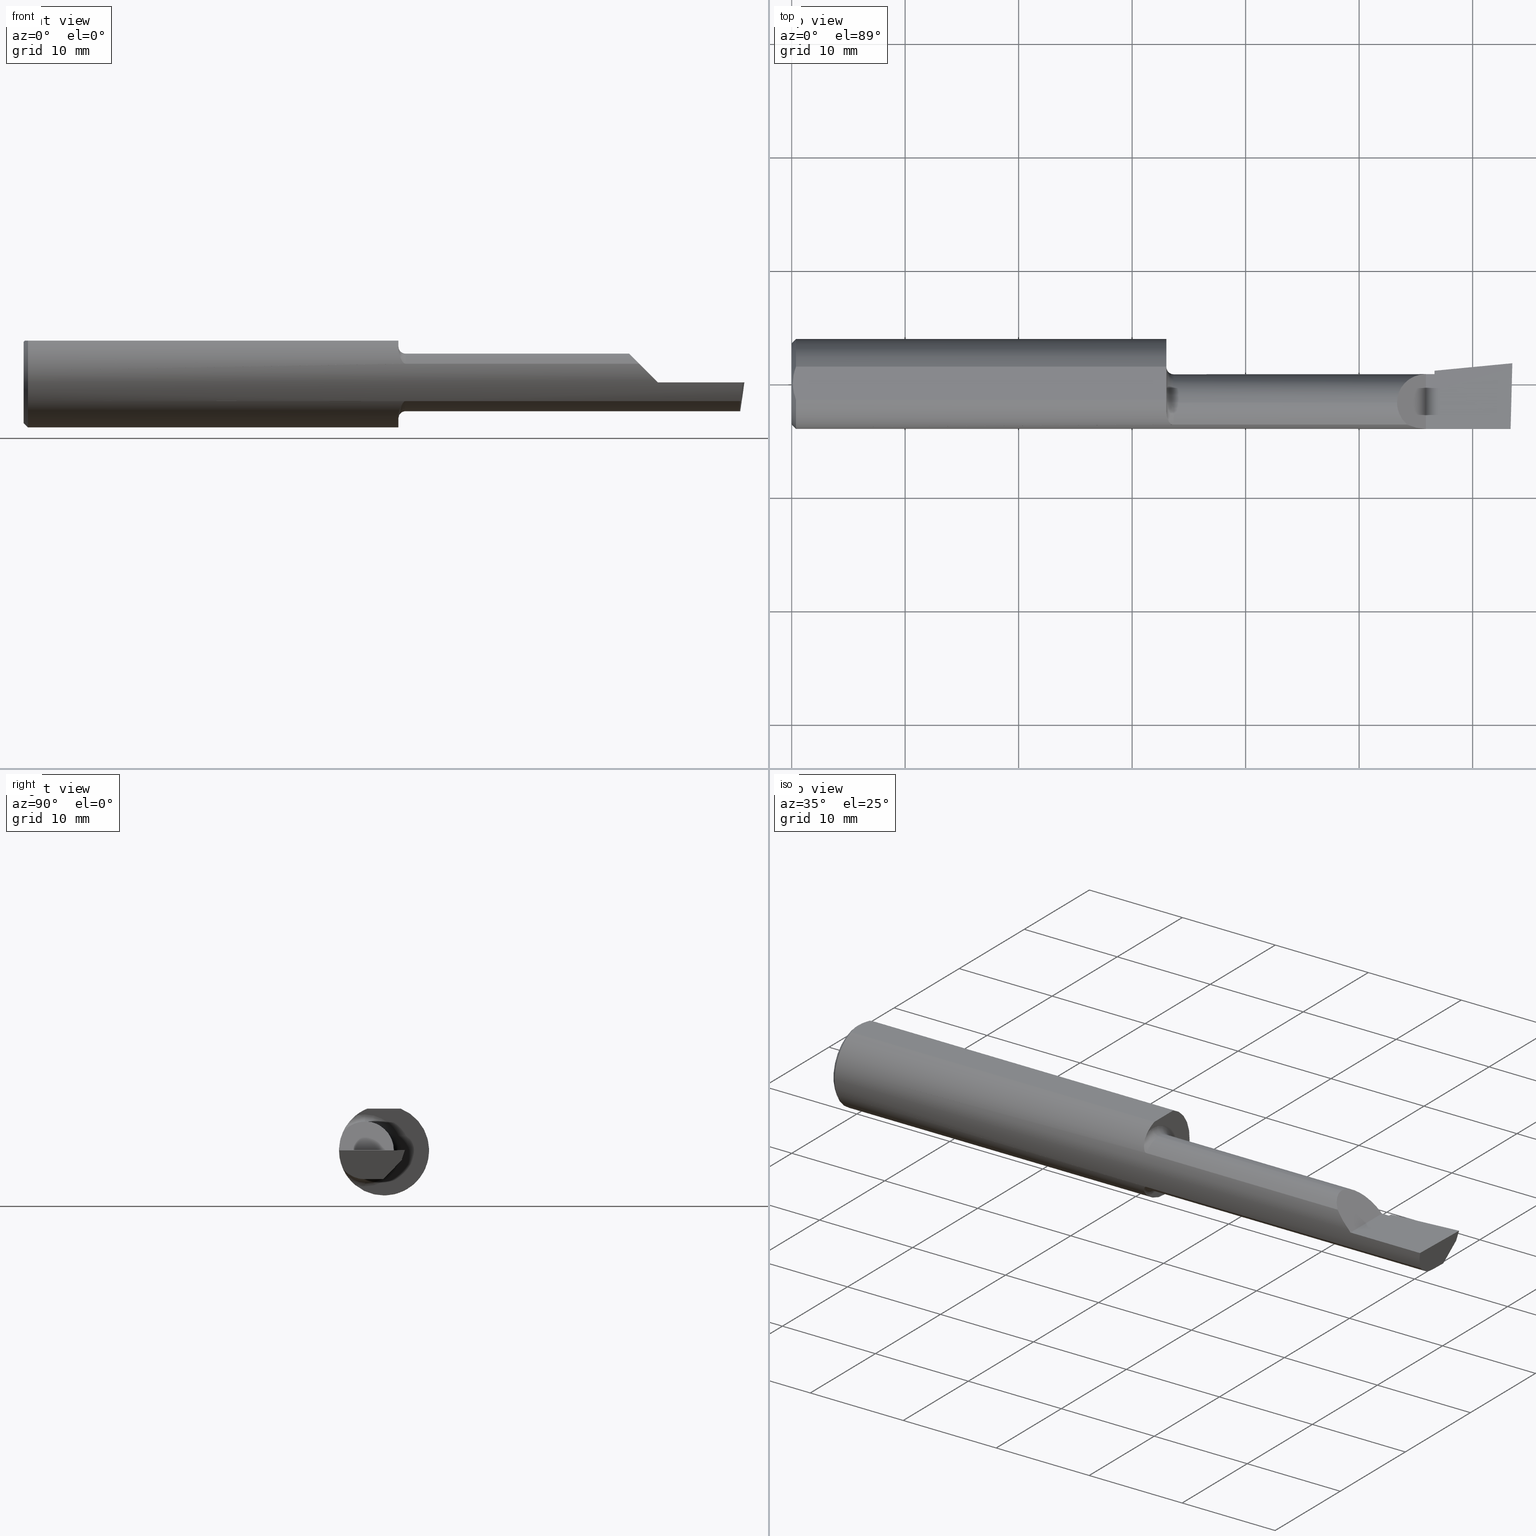
[diagram: canonical four-view strip — front | top / right | iso, engineering-drawing reading convention]
A machine part, canonical four-view strip (front | top / right | iso — engineering-drawing reading convention). The complete STEP part file that produces these views, byte-faithful:
ISO-10303-21;
HEADER;
FILE_DESCRIPTION (( 'STEP AP214' ),
    '1' );
FILE_NAME ('B2301150.STEP',
    '2020-05-07T17:21:41',
    ( '' ),
    ( '' ),
    'SwSTEP 2.0',
    'SolidWorks 2018',
    '' );
FILE_SCHEMA (( 'AUTOMOTIVE_DESIGN' ));
ENDSEC;

DATA;
#1 = AXIS2_PLACEMENT_3D ( 'NONE', #298, #615, #618 ) ;
#2 = EDGE_LOOP ( 'NONE', ( #656, #594, #20, #104 ) ) ;
#3 = EDGE_CURVE ( 'NONE', #108, #460, #457, .T. ) ;
#4 = ORIENTED_EDGE ( 'NONE', *, *, #416, .F. ) ;
#5 = CARTESIAN_POINT ( 'NONE',  ( 0.0000000000000000000, -0.06599999999999998923, 0.0000000000000000000 ) ) ;
#6 =( GEOMETRIC_REPRESENTATION_CONTEXT ( 3 ) GLOBAL_UNCERTAINTY_ASSIGNED_CONTEXT ( ( #172 ) ) GLOBAL_UNIT_ASSIGNED_CONTEXT ( ( #710, #40, #533 ) ) REPRESENTATION_CONTEXT ( 'NONE', 'WORKASPACE' ) );
#7 = VERTEX_POINT ( 'NONE', #640 ) ;
#8 = DIRECTION ( 'NONE',  ( 0.0000000000000000000, 1.000000000000000000, -1.656870447394628111E-16 ) ) ;
#9 = DIRECTION ( 'NONE',  ( 0.1240019227989686140, 0.3022330132596660612, 0.9451342385281262803 ) ) ;
#10 = ORIENTED_EDGE ( 'NONE', *, *, #69, .T. ) ;
#11 = DIRECTION ( 'NONE',  ( 1.000000000000000000, 0.0000000000000000000, 0.0000000000000000000 ) ) ;
#12 = ORIENTED_EDGE ( 'NONE', *, *, #209, .F. ) ;
#13 = AXIS2_PLACEMENT_3D ( 'NONE', #502, #111, #452 ) ;
#14 = VECTOR ( 'NONE', #471, 39.37007874015748854 ) ;
#15 = DIRECTION ( 'NONE',  ( 1.000000000000000000, 0.0000000000000000000, 0.0000000000000000000 ) ) ;
#16 = CARTESIAN_POINT ( 'NONE',  ( 2.200000000000000178, 0.03389999999999987468, 9.797174393178826150E-17 ) ) ;
#17 = DIRECTION ( 'NONE',  ( 1.000000000000000000, 0.0000000000000000000, 0.0000000000000000000 ) ) ;
#18 = EDGE_CURVE ( 'NONE', #389, #585, #80, .T. ) ;
#19 = ORIENTED_EDGE ( 'NONE', *, *, #499, .T. ) ;
#20 = ORIENTED_EDGE ( 'NONE', *, *, #403, .T. ) ;
#21 = CARTESIAN_POINT ( 'NONE',  ( 2.510979566536824414, 0.06220714699351684307, -0.03500000000000000333 ) ) ;
#22 = AXIS2_PLACEMENT_3D ( 'NONE', #548, #703, #706 ) ;
#23 = CARTESIAN_POINT ( 'NONE',  ( 1.300428134837081862, -0.1092850169809857497, -0.1116497630123361312 ) ) ;
#24 = DIRECTION ( 'NONE',  ( 1.000000000000000000, 0.0000000000000000000, 0.0000000000000000000 ) ) ;
#25 = CARTESIAN_POINT ( 'NONE',  ( 2.229999999999999982, 0.02031953758082122655, -0.05028864118101800118 ) ) ;
#26 = ORIENTED_EDGE ( 'NONE', *, *, #3, .F. ) ;
#27 = CARTESIAN_POINT ( 'NONE',  ( 1.325000000000000178, -0.06599999999999998923, -0.09989999999999990554 ) ) ;
#28 = EDGE_CURVE ( 'NONE', #164, #680, #353, .T. ) ;
#29 = DIRECTION ( 'NONE',  ( -1.000000000000000000, -0.0000000000000000000, -0.0000000000000000000 ) ) ;
#30 = CARTESIAN_POINT ( 'NONE',  ( 2.229999999999999982, -0.06599999999999998923, 0.0000000000000000000 ) ) ;
#31 = ADVANCED_FACE ( 'NONE', ( #167 ), #319, .F. ) ;
#32 = LINE ( 'NONE', #33, #200 ) ;
#33 = CARTESIAN_POINT ( 'NONE',  ( 2.495690841152410577, 0.06258158045839970485, -0.03309662379331571036 ) ) ;
#34 = CARTESIAN_POINT ( 'NONE',  ( 0.0000000000000000000, 0.05756040305626779902, 0.1450999999999999512 ) ) ;
#35 =( NAMED_UNIT ( * ) PLANE_ANGLE_UNIT ( ) SI_UNIT ( $, .RADIAN. ) );
#36 = CARTESIAN_POINT ( 'NONE',  ( 1.302040506864491576, -0.1180407066556270340, 0.1023492120876696720 ) ) ;
#37 = CARTESIAN_POINT ( 'NONE',  ( 1.325000000000000178, -0.06599999999999998923, 0.0000000000000000000 ) ) ;
#38 = VERTEX_POINT ( 'NONE', #584 ) ;
#39 = ORIENTED_EDGE ( 'NONE', *, *, #454, .F. ) ;
#40 =( NAMED_UNIT ( * ) PLANE_ANGLE_UNIT ( ) SI_UNIT ( $, .RADIAN. ) );
#41 = DIRECTION ( 'NONE',  ( 0.0000000000000000000, 0.0000000000000000000, 1.000000000000000000 ) ) ;
#42 = DIRECTION ( 'NONE',  ( 1.000000000000000000, 0.0000000000000000000, 0.0000000000000000000 ) ) ;
#43 = EDGE_CURVE ( 'NONE', #207, #108, #653, .T. ) ;
#44 = CARTESIAN_POINT ( 'NONE',  ( 2.100099999999998968, -0.06599999999999998923, 0.09989999999999991942 ) ) ;
#45 = UNCERTAINTY_MEASURE_WITH_UNIT (LENGTH_MEASURE( 1.000000000000000082E-05 ), #368, 'distance_accuracy_value', 'NONE');
#46 = EDGE_LOOP ( 'NONE', ( #83, #546, #244, #543 ) ) ;
#47 = AXIS2_PLACEMENT_3D ( 'NONE', #321, #106, #286 ) ;
#48 = VERTEX_POINT ( 'NONE', #398 ) ;
#49 = VECTOR ( 'NONE', #196, 39.37007874015748143 ) ;
#50 = B_SPLINE_CURVE_WITH_KNOTS ( 'NONE', 3,
 ( #637, #695, #371, #36, #430, #86, #485, #149, #537, #208, #586, #259, #643, #317 ),
 .UNSPECIFIED., .F., .F.,
 ( 4, 2, 2, 2, 2, 2, 4 ),
 ( 0.0001856976868807112932, 0.0006805519038525565442, 0.001175406120824401849, 0.001670260337796246938, 0.001917687446282169807, 0.002041401000525131567, 0.002165114554768093110 ),
 .UNSPECIFIED. ) ;
#51 = CIRCLE ( 'NONE', #411, 0.09989999999999990554 ) ;
#52 = AXIS2_PLACEMENT_3D ( 'NONE', #327, #651, #268 ) ;
#53 = EDGE_CURVE ( 'NONE', #460, #689, #404, .T. ) ;
#54 = VERTEX_POINT ( 'NONE', #344 ) ;
#55 = ORIENTED_EDGE ( 'NONE', *, *, #664, .F. ) ;
#56 = FACE_OUTER_BOUND ( 'NONE', #578, .T. ) ;
#57 = AXIS2_PLACEMENT_3D ( 'NONE', #257, #475, #482 ) ;
#58 = CARTESIAN_POINT ( 'NONE',  ( 2.229999999999999982, 0.04590195698666835883, 3.180041805124806541E-16 ) ) ;
#59 = ORIENTED_EDGE ( 'NONE', *, *, #305, .F. ) ;
#60 = STYLED_ITEM ( 'NONE', ( #544 ), #622 ) ;
#61 = EDGE_CURVE ( 'NONE', #351, #389, #163, .T. ) ;
#62 = ORIENTED_EDGE ( 'NONE', *, *, #318, .T. ) ;
#63 = CARTESIAN_POINT ( 'NONE',  ( 2.500188977433819293, 0.07236059946466855131, 0.001440373173036951305 ) ) ;
#64 = CIRCLE ( 'NONE', #590, 0.09989999999999991942 ) ;
#65 = EDGE_LOOP ( 'NONE', ( #180, #141, #153, #506, #465, #262 ) ) ;
#66 = LINE ( 'NONE', #681, #334 ) ;
#67 = DIRECTION ( 'NONE',  ( 1.000000000000000000, 0.0000000000000000000, 0.0000000000000000000 ) ) ;
#68 = DIRECTION ( 'NONE',  ( -1.000000000000000000, -0.0000000000000000000, -0.0000000000000000000 ) ) ;
#69 = EDGE_CURVE ( 'NONE', #670, #680, #316, .T. ) ;
#70 = VERTEX_POINT ( 'NONE', #58 ) ;
#71 = CARTESIAN_POINT ( 'NONE',  ( 1.300000000000000266, -0.09941818181818193323, -0.1203463132961160309 ) ) ;
#72 = ORIENTED_EDGE ( 'NONE', *, *, #628, .T. ) ;
#73 = CARTESIAN_POINT ( 'NONE',  ( 2.495407988494083629, 0.06070777456484782730, -0.03500000000000000333 ) ) ;
#74 = CARTESIAN_POINT ( 'NONE',  ( 0.0000000000000000000, 0.0000000000000000000, 0.0000000000000000000 ) ) ;
#75 = COLOUR_RGB ( '',0.7529411764705882248, 0.7529411764705882248, 0.7529411764705882248 ) ;
#76 = CARTESIAN_POINT ( 'NONE',  ( 2.155587570325277369, -0.1513252362624134539, 0.04441242967472197600 ) ) ;
#77 = ADVANCED_FACE ( 'NONE', ( #420 ), #118, .T. ) ;
#78 = CARTESIAN_POINT ( 'NONE',  ( 2.112547924827750112, -0.1227037540429563173, 0.08745207517224930227 ) ) ;
#79 = PLANE ( 'NONE',  #222 ) ;
#80 = CIRCLE ( 'NONE', #508, 0.09989999999999990554 ) ;
#81 = CARTESIAN_POINT ( 'NONE',  ( 2.135154559332283597, -0.1419939393939393668, 0.06484544066771584514 ) ) ;
#82 = ADVANCED_FACE ( 'NONE', ( #559 ), #604, .F. ) ;
#83 = ORIENTED_EDGE ( 'NONE', *, *, #678, .F. ) ;
#84 = VERTEX_POINT ( 'NONE', #661 ) ;
#85 = FACE_OUTER_BOUND ( 'NONE', #65, .T. ) ;
#86 = CARTESIAN_POINT ( 'NONE',  ( 1.306590655429605397, -0.1296720675120676958, 0.08713405786343433879 ) ) ;
#87 = EDGE_CURVE ( 'NONE', #407, #487, #509, .T. ) ;
#88 = FILL_AREA_STYLE_COLOUR ( '', #297 ) ;
#89 = DIRECTION ( 'NONE',  ( 0.0000000000000000000, 0.0000000000000000000, 1.000000000000000000 ) ) ;
#90 = VECTOR ( 'NONE', #562, 39.37007874015748143 ) ;
#91 = CARTESIAN_POINT ( 'NONE',  ( 1.325000000000000178, -0.06599999999999998923, 0.0000000000000000000 ) ) ;
#92 = CARTESIAN_POINT ( 'NONE',  ( 0.0000000000000000000, 0.0000000000000000000, 0.0000000000000000000 ) ) ;
#93 = UNCERTAINTY_MEASURE_WITH_UNIT (LENGTH_MEASURE( 1.000000000000000082E-05 ), #281, 'distance_accuracy_value', 'NONE');
#94 = CARTESIAN_POINT ( 'NONE',  ( 2.229999999999999982, 0.04590195698666438284, 0.0000000000000000000 ) ) ;
#95 = LINE ( 'NONE', #63, #612 ) ;
#96 = CARTESIAN_POINT ( 'NONE',  ( 2.486434241799654998, -0.1419939393939394501, -0.06484544066771573412 ) ) ;
#97 = AXIS2_PLACEMENT_3D ( 'NONE', #201, #608, #619 ) ;
#98 = ORIENTED_EDGE ( 'NONE', *, *, #53, .T. ) ;
#99 = DIRECTION ( 'NONE',  ( 0.0000000000000000000, 0.0000000000000000000, -1.000000000000000000 ) ) ;
#100 = PRESENTATION_LAYER_ASSIGNMENT (  '', '', ( #60 ) ) ;
#101 = EDGE_CURVE ( 'NONE', #70, #491, #231, .T. ) ;
#102 = VECTOR ( 'NONE', #160, 39.37007874015748143 ) ;
#103 = ORIENTED_EDGE ( 'NONE', *, *, #443, .T. ) ;
#104 = ORIENTED_EDGE ( 'NONE', *, *, #278, .T. ) ;
#105 = VECTOR ( 'NONE', #614, 39.37007874015748143 ) ;
#106 = DIRECTION ( 'NONE',  ( -1.000000000000000000, -0.0000000000000000000, -0.0000000000000000000 ) ) ;
#107 =( NAMED_UNIT ( * ) SI_UNIT ( $, .STERADIAN. ) SOLID_ANGLE_UNIT ( ) );
#108 = VERTEX_POINT ( 'NONE', #213 ) ;
#109 = DIRECTION ( 'NONE',  ( 0.7071067811865390240, 0.0000000000000000000, -0.7071067811865560104 ) ) ;
#110 = EDGE_CURVE ( 'NONE', #38, #689, #607, .T. ) ;
#111 = DIRECTION ( 'NONE',  ( 0.0000000000000000000, -1.000000000000000000, 0.0000000000000000000 ) ) ;
#112 = ORIENTED_EDGE ( 'NONE', *, *, #664, .T. ) ;
#113 = CARTESIAN_POINT ( 'NONE',  ( 0.01499999999999999424, 0.0000000000000000000, -0.1560999999999999888 ) ) ;
#114 = CARTESIAN_POINT ( 'NONE',  ( 0.004000000000000238608, 1.884449684559922719E-17, 0.1450999999999999790 ) ) ;
#115 = CARTESIAN_POINT ( 'NONE',  ( 0.01499999999999999424, 1.911673653469018068E-17, 0.1560999999999999888 ) ) ;
#116 = PLANE ( 'NONE',  #387 ) ;
#117 = CARTESIAN_POINT ( 'NONE',  ( 1.300000000000000266, -0.06599999999999998923, -0.1248999999999999139 ) ) ;
#118 = CYLINDRICAL_SURFACE ( 'NONE', #121, 0.09989999999999991942 ) ;
#119 = CARTESIAN_POINT ( 'NONE',  ( 2.493876284481119754, -0.002402782730616384674, -0.09990000000000000269 ) ) ;
#120 = DIRECTION ( 'NONE',  ( 0.0000000000000000000, 0.0000000000000000000, 1.000000000000000000 ) ) ;
#121 = AXIS2_PLACEMENT_3D ( 'NONE', #5, #395, #556 ) ;
#122 = ORIENTED_EDGE ( 'NONE', *, *, #278, .F. ) ;
#123 = ORIENTED_EDGE ( 'NONE', *, *, #138, .F. ) ;
#124 = CARTESIAN_POINT ( 'NONE',  ( 0.0000000000000000000, -0.06599999999999998923, -0.09989999999999991942 ) ) ;
#125 = TOROIDAL_SURFACE ( 'NONE', #1, 0.1248999999999999139, 0.02499999999999993894 ) ;
#126 = CIRCLE ( 'NONE', #660, 0.1248999999999999139 ) ;
#127 = CARTESIAN_POINT ( 'NONE',  ( 2.229999999999999982, -0.02781117900520267347, -0.09990000000000000269 ) ) ;
#128 = PLANE ( 'NONE',  #283 ) ;
#129 = EDGE_CURVE ( 'NONE', #164, #139, #150, .T. ) ;
#130 = ORIENTED_EDGE ( 'NONE', *, *, #342, .F. ) ;
#131 = CARTESIAN_POINT ( 'NONE',  ( 1.321725699135996468, -0.1417275062431945787, -0.06543227863119828458 ) ) ;
#132 = DIRECTION ( 'NONE',  ( 1.000000000000000000, 0.0000000000000000000, 0.0000000000000000000 ) ) ;
#133 = DIRECTION ( 'NONE',  ( 0.0000000000000000000, 1.000000000000000000, 0.0000000000000000000 ) ) ;
#134 = VECTOR ( 'NONE', #211, 39.37007874015748143 ) ;
#135 = DIRECTION ( 'NONE',  ( 0.0000000000000000000, 1.000000000000000000, 0.0000000000000000000 ) ) ;
#136 = MECHANICAL_DESIGN_GEOMETRIC_PRESENTATION_REPRESENTATION (  '', ( #60 ), #177 ) ;
#137 = CARTESIAN_POINT ( 'NONE',  ( 0.01499999999999999424, 0.05756040305626779902, 0.1450999999999999512 ) ) ;
#138 = EDGE_CURVE ( 'NONE', #617, #425, #528, .T. ) ;
#139 = VERTEX_POINT ( 'NONE', #542 ) ;
#140 = ADVANCED_FACE ( 'NONE', ( #272 ), #381, .F. ) ;
#141 = ORIENTED_EDGE ( 'NONE', *, *, #192, .T. ) ;
#142 = DIRECTION ( 'NONE',  ( 0.0000000000000000000, 0.2936076258024059027, 0.9559260233253795702 ) ) ;
#143 = ADVANCED_FACE ( 'NONE', ( #441 ), #116, .T. ) ;
#144 = ORIENTED_EDGE ( 'NONE', *, *, #469, .F. ) ;
#145 = LINE ( 'NONE', #519, #479 ) ;
#146 = VECTOR ( 'NONE', #24, 39.37007874015748143 ) ;
#147 = DIRECTION ( 'NONE',  ( -1.000000000000000000, 5.691349986800549142E-18, -0.0000000000000000000 ) ) ;
#148 = CARTESIAN_POINT ( 'NONE',  ( 0.005030132703184950031, 0.01970541148932063169, 0.1451000000000000068 ) ) ;
#149 = CARTESIAN_POINT ( 'NONE',  ( 1.313017092274626041, -0.1374043365808045869, 0.07413505991998664557 ) ) ;
#150 =( BOUNDED_CURVE ( )  B_SPLINE_CURVE ( 3, ( #96, #438, #380, #701 ),
 .UNSPECIFIED., .F., .F. ) 
 B_SPLINE_CURVE_WITH_KNOTS ( ( 4, 4 ),
 ( 0.9323538202062678915, 1.360746882514633382 ),
 .UNSPECIFIED. ) 
 CURVE ( )  GEOMETRIC_REPRESENTATION_ITEM ( )  RATIONAL_B_SPLINE_CURVE ( ( 1.000000000000000000, 0.9847649979006014576, 0.9847649979006014576, 1.000000000000000000 ) ) 
 REPRESENTATION_ITEM ( '' )  );
#151 = CARTESIAN_POINT ( 'NONE',  ( 2.484118579027826179, -0.06599999999999998923, -0.09990000000000000269 ) ) ;
#152 = AXIS2_PLACEMENT_3D ( 'NONE', #247, #29, #633 ) ;
#153 = ORIENTED_EDGE ( 'NONE', *, *, #492, .F. ) ;
#154 = DIRECTION ( 'NONE',  ( 0.0000000000000000000, 0.0000000000000000000, 1.000000000000000000 ) ) ;
#155 = DIRECTION ( 'NONE',  ( -1.000000000000000000, 0.0000000000000000000, -0.0000000000000000000 ) ) ;
#156 = CARTESIAN_POINT ( 'NONE',  ( 1.300000000000000266, -0.09941818181818193323, 0.1203463132961160309 ) ) ;
#157 = VERTEX_POINT ( 'NONE', #611 ) ;
#158 = DIRECTION ( 'NONE',  ( 0.0000000000000000000, -0.6963153109074925462, -0.7177360153954948085 ) ) ;
#159 = EDGE_CURVE ( 'NONE', #70, #569, #194, .T. ) ;
#160 = DIRECTION ( 'NONE',  ( 0.0000000000000000000, -1.000000000000000000, 1.656870447394628111E-16 ) ) ;
#161 = VECTOR ( 'NONE', #147, 39.37007874015748143 ) ;
#162 = APPLICATION_PROTOCOL_DEFINITION ( 'draft international standard', 'automotive_design', 1998, #503 ) ;
#163 = CIRCLE ( 'NONE', #13, 0.02499999999999993894 ) ;
#164 = VERTEX_POINT ( 'NONE', #507 ) ;
#165 = ORIENTED_EDGE ( 'NONE', *, *, #403, .F. ) ;
#166 = AXIS2_PLACEMENT_3D ( 'NONE', #455, #555, #171 ) ;
#167 = FACE_OUTER_BOUND ( 'NONE', #610, .T. ) ;
#168 = EDGE_CURVE ( 'NONE', #164, #48, #241, .T. ) ;
#169 = DIRECTION ( 'NONE',  ( 0.0000000000000000000, 0.0000000000000000000, 1.000000000000000000 ) ) ;
#170 = ORIENTED_EDGE ( 'NONE', *, *, #342, .T. ) ;
#171 = DIRECTION ( 'NONE',  ( 1.000000000000000000, 0.0000000000000000000, 0.0000000000000000000 ) ) ;
#172 = UNCERTAINTY_MEASURE_WITH_UNIT (LENGTH_MEASURE( 1.000000000000000082E-05 ), #710, 'distance_accuracy_value', 'NONE');
#173 = FACE_OUTER_BOUND ( 'NONE', #329, .T. ) ;
#174 = CARTESIAN_POINT ( 'NONE',  ( 2.484129461495571345, -0.06558441532346195868, -0.09990000000000000269 ) ) ;
#175 = EDGE_LOOP ( 'NONE', ( #616, #629, #130 ) ) ;
#176 = CARTESIAN_POINT ( 'NONE',  ( 0.005011318927233133005, -0.01959047621504276041, 0.1450999999999999790 ) ) ;
#177 =( GEOMETRIC_REPRESENTATION_CONTEXT ( 3 ) GLOBAL_UNCERTAINTY_ASSIGNED_CONTEXT ( ( #93 ) ) GLOBAL_UNIT_ASSIGNED_CONTEXT ( ( #281, #280, #107 ) ) REPRESENTATION_CONTEXT ( 'NONE', 'WORKASPACE' ) );
#178 = EDGE_CURVE ( 'NONE', #322, #569, #95, .T. ) ;
#179 = CARTESIAN_POINT ( 'NONE',  ( 1.067853742648958049, -0.06599999999999998923, 2.099619311869716025E-16 ) ) ;
#180 = ORIENTED_EDGE ( 'NONE', *, *, #364, .F. ) ;
#181 = LINE ( 'NONE', #524, #221 ) ;
#182 = CARTESIAN_POINT ( 'NONE',  ( 2.510979566536824414, 0.06220714699351684307, -0.03500000000000000333 ) ) ;
#183 = CARTESIAN_POINT ( 'NONE',  ( 1.777500000000000080, -0.1419939393939394501, 0.06484544066771573412 ) ) ;
#184 = CARTESIAN_POINT ( 'NONE',  ( 0.0000000000000000000, 1.819825143532964315E-17, 0.1410999999999996146 ) ) ;
#185 = STYLED_ITEM ( 'NONE', ( #574 ), #382 ) ;
#186 = ORIENTED_EDGE ( 'NONE', *, *, #384, .F. ) ;
#187 = ORIENTED_EDGE ( 'NONE', *, *, #592, .F. ) ;
#188 = CARTESIAN_POINT ( 'NONE',  ( 0.01499999999999999424, 0.0000000000000000000, 0.0000000000000000000 ) ) ;
#189 = VECTOR ( 'NONE', #335, 39.37007874015748854 ) ;
#190 = CARTESIAN_POINT ( 'NONE',  ( 1.317803744158916102, -0.1404244429940953998, -0.06818941713933172888 ) ) ;
#191 = DIRECTION ( 'NONE',  ( 0.0000000000000000000, 0.0000000000000000000, 1.000000000000000000 ) ) ;
#192 = EDGE_CURVE ( 'NONE', #670, #220, #390, .T. ) ;
#193 = CARTESIAN_POINT ( 'NONE',  ( 0.01499999999999999424, 0.0000000000000000000, 0.0000000000000000000 ) ) ;
#194 = LINE ( 'NONE', #179, #686 ) ;
#195 = PRODUCT_DEFINITION_CONTEXT ( 'detailed design', #503, 'design' ) ;
#196 = DIRECTION ( 'NONE',  ( -1.000000000000000000, -0.0000000000000000000, -0.0000000000000000000 ) ) ;
#197 = ADVANCED_FACE ( 'NONE', ( #85 ), #613, .T. ) ;
#198 = CARTESIAN_POINT ( 'NONE',  ( 0.0000000000000000000, 0.0000000000000000000, 0.0000000000000000000 ) ) ;
#199 = ORIENTED_EDGE ( 'NONE', *, *, #541, .F. ) ;
#200 = VECTOR ( 'NONE', #422, 39.37007874015748854 ) ;
#201 = CARTESIAN_POINT ( 'NONE',  ( 1.300000000000000266, -0.06599999999999998923, 0.0000000000000000000 ) ) ;
#202 = LINE ( 'NONE', #383, #161 ) ;
#203 = ADVANCED_FACE ( 'NONE', ( #673 ), #405, .F. ) ;
#204 = DIRECTION ( 'NONE',  ( 0.0000000000000000000, 0.0000000000000000000, -1.000000000000000000 ) ) ;
#205 = CARTESIAN_POINT ( 'NONE',  ( 0.0000000000000000000, 0.0000000000000000000, 0.0000000000000000000 ) ) ;
#206 = CARTESIAN_POINT ( 'NONE',  ( 0.004000000000000238608, 1.884449684559922719E-17, 0.1450999999999999790 ) ) ;
#207 = VERTEX_POINT ( 'NONE', #510 ) ;
#208 = CARTESIAN_POINT ( 'NONE',  ( 1.317808428589330338, -0.1404263024719112074, 0.06818548243543451348 ) ) ;
#209 = EDGE_CURVE ( 'NONE', #139, #569, #408, .T. ) ;
#210 = ORIENTED_EDGE ( 'NONE', *, *, #238, .T. ) ;
#211 = DIRECTION ( 'NONE',  ( -1.000000000000000000, -0.0000000000000000000, -0.0000000000000000000 ) ) ;
#212 = CYLINDRICAL_SURFACE ( 'NONE', #504, 0.1560999999999999888 ) ;
#213 = CARTESIAN_POINT ( 'NONE',  ( 0.004000000000000238608, 1.884449684559922719E-17, 0.1450999999999999790 ) ) ;
#214 = AXIS2_PLACEMENT_3D ( 'NONE', #224, #377, #511 ) ;
#215 = EDGE_LOOP ( 'NONE', ( #253, #702, #456, #98, #308 ) ) ;
#216 = EDGE_CURVE ( 'NONE', #579, #84, #657, .T. ) ;
#217 = LENGTH_MEASURE_WITH_UNIT ( LENGTH_MEASURE( 0.02539999999999999897 ), #690 );
#218 = VERTEX_POINT ( 'NONE', #184 ) ;
#219 = CLOSED_SHELL ( 'NONE', ( #418, #687, #140, #249, #310, #630, #143, #82, #635, #31, #684, #526, #582, #480, #361, #423, #77, #367, #197, #203, #577 ) ) ;
#220 = VERTEX_POINT ( 'NONE', #127 ) ;
#221 = VECTOR ( 'NONE', #135, 39.37007874015748143 ) ;
#222 = AXIS2_PLACEMENT_3D ( 'NONE', #312, #481, #142 ) ;
#223 = CONICAL_SURFACE ( 'NONE', #621, 0.1560999999999999888, 0.7853981633974602694 ) ;
#224 = CARTESIAN_POINT ( 'NONE',  ( 2.482005098963840695, -0.1170392233017039929, -0.1062257522883767180 ) ) ;
#225 = EDGE_LOOP ( 'NONE', ( #532, #451, #576, #311 ) ) ;
#226 = EDGE_CURVE ( 'NONE', #487, #585, #237, .T. ) ;
#227 = ORIENTED_EDGE ( 'NONE', *, *, #478, .T. ) ;
#228 = CARTESIAN_POINT ( 'NONE',  ( 0.008818052469297050708, -0.03886761757380372689, 0.1451000000000000068 ) ) ;
#229 = DIRECTION ( 'NONE',  ( 0.0000000000000000000, -3.589139631315664435E-15, 1.000000000000000000 ) ) ;
#230 = CYLINDRICAL_SURFACE ( 'NONE', #47, 0.09989999999999991942 ) ;
#231 = LINE ( 'NONE', #393, #625 ) ;
#232 = DIRECTION ( 'NONE',  ( -1.000000000000000000, 0.0000000000000000000, -0.0000000000000000000 ) ) ;
#233 = CARTESIAN_POINT ( 'NONE',  ( 2.491576527842699562, -0.2497794236187485528, 6.912943690626120576E-17 ) ) ;
#234 = VERTEX_POINT ( 'NONE', #568 ) ;
#235 = APPLICATION_CONTEXT ( 'automotive_design' ) ;
#236 = EDGE_LOOP ( 'NONE', ( #343, #10, #448, #170 ) ) ;
#237 = LINE ( 'NONE', #124, #427 ) ;
#238 = EDGE_CURVE ( 'NONE', #425, #572, #255, .T. ) ;
#239 = LINE ( 'NONE', #606, #659 ) ;
#240 = DIRECTION ( 'NONE',  ( 0.0000000000000000000, 0.0000000000000000000, 1.000000000000000000 ) ) ;
#241 = LINE ( 'NONE', #289, #248 ) ;
#242 = CARTESIAN_POINT ( 'NONE',  ( 1.312996561902688208, -0.1373850824029525242, -0.07416982835688749887 ) ) ;
#243 = AXIS2_PLACEMENT_3D ( 'NONE', #458, #466, #449 ) ;
#244 = ORIENTED_EDGE ( 'NONE', *, *, #265, .T. ) ;
#245 = PLANE ( 'NONE',  #57 ) ;
#246 = EDGE_CURVE ( 'NONE', #689, #207, #564, .T. ) ;
#247 = CARTESIAN_POINT ( 'NONE',  ( 1.325000000000000178, -0.06600000000000000311, 0.0000000000000000000 ) ) ;
#248 = VECTOR ( 'NONE', #346, 39.37007874015748143 ) ;
#249 = ADVANCED_FACE ( 'NONE', ( #694 ), #125, .F. ) ;
#250 = FILL_AREA_STYLE ('',( #581 ) ) ;
#251 = CARTESIAN_POINT ( 'NONE',  ( 0.0000000000000000000, 0.0000000000000000000, 0.0000000000000000000 ) ) ;
#252 = CARTESIAN_POINT ( 'NONE',  ( 0.008823987512428459190, 0.03887788046871686748, 0.1450999999999999790 ) ) ;
#253 = ORIENTED_EDGE ( 'NONE', *, *, #648, .F. ) ;
#254 = EDGE_LOOP ( 'NONE', ( #320, #551, #72, #199 ) ) ;
#255 = CIRCLE ( 'NONE', #497, 0.1560999999999999888 ) ;
#256 = DIRECTION ( 'NONE',  ( 0.0000000000000000000, 0.0000000000000000000, 1.000000000000000000 ) ) ;
#257 = CARTESIAN_POINT ( 'NONE',  ( 2.200000000000000178, -0.2500000000000000555, 9.797174393178826150E-17 ) ) ;
#258 = VECTOR ( 'NONE', #645, 39.37007874015748143 ) ;
#259 = CARTESIAN_POINT ( 'NONE',  ( 1.321727793412432739, -0.1417279534125322760, 0.06543130843947163322 ) ) ;
#260 = DIRECTION ( 'NONE',  ( -0.02617694830789217206, -0.9996573249755568158, 0.0000000000000000000 ) ) ;
#261 = PRESENTATION_LAYER_ASSIGNMENT (  '', '', ( #185 ) ) ;
#262 = ORIENTED_EDGE ( 'NONE', *, *, #288, .F. ) ;
#263 = CARTESIAN_POINT ( 'NONE',  ( 1.300000000000000266, 0.05889999999999991770, 0.0000000000000000000 ) ) ;
#264 = CARTESIAN_POINT ( 'NONE',  ( 1.325000000000000178, -0.06599999999999998923, -0.1248999999999999139 ) ) ;
#265 = EDGE_CURVE ( 'NONE', #54, #84, #275, .T. ) ;
#266 = ORIENTED_EDGE ( 'NONE', *, *, #705, .T. ) ;
#267 = CARTESIAN_POINT ( 'NONE',  ( 1.300000000000000266, -0.06599999999999998923, 0.0000000000000000000 ) ) ;
#268 = DIRECTION ( 'NONE',  ( 0.0000000000000000000, 0.0000000000000000000, 1.000000000000000000 ) ) ;
#269 = DIRECTION ( 'NONE',  ( -1.000000000000000000, -0.0000000000000000000, -0.0000000000000000000 ) ) ;
#270 = PRODUCT_CONTEXT ( 'NONE', #235, 'mechanical' ) ;
#271 = DIRECTION ( 'NONE',  ( 1.000000000000000000, 0.0000000000000000000, 0.0000000000000000000 ) ) ;
#272 = FACE_OUTER_BOUND ( 'NONE', #2, .T. ) ;
#273 = ORIENTED_EDGE ( 'NONE', *, *, #129, .F. ) ;
#274 = ORIENTED_EDGE ( 'NONE', *, *, #216, .T. ) ;
#275 = LINE ( 'NONE', #515, #293 ) ;
#276 = DIRECTION ( 'NONE',  ( 0.0000000000000000000, 0.0000000000000000000, 1.000000000000000000 ) ) ;
#277 = CIRCLE ( 'NONE', #97, 0.1248999999999999139 ) ;
#278 = EDGE_CURVE ( 'NONE', #48, #234, #520, .T. ) ;
#279 = ORIENTED_EDGE ( 'NONE', *, *, #384, .T. ) ;
#280 =( NAMED_UNIT ( * ) PLANE_ANGLE_UNIT ( ) SI_UNIT ( $, .RADIAN. ) );
#281 =( CONVERSION_BASED_UNIT ( 'INCH', #442 ) LENGTH_UNIT ( ) NAMED_UNIT ( #539 ) );
#282 = LENGTH_MEASURE_WITH_UNIT ( LENGTH_MEASURE( 0.02539999999999999897 ), #496 );
#283 = AXIS2_PLACEMENT_3D ( 'NONE', #251, #132, #204 ) ;
#284 = DIRECTION ( 'NONE',  ( -1.000000000000000000, -0.0000000000000000000, -0.0000000000000000000 ) ) ;
#285 = CARTESIAN_POINT ( 'NONE',  ( 0.01499999999999999424, -0.05756040305626774350, 0.1451000000000000068 ) ) ;
#286 = DIRECTION ( 'NONE',  ( 0.0000000000000000000, 0.0000000000000000000, 1.000000000000000000 ) ) ;
#287 = AXIS2_PLACEMENT_3D ( 'NONE', #92, #276, #271 ) ;
#288 = EDGE_CURVE ( 'NONE', #322, #491, #446, .T. ) ;
#289 = CARTESIAN_POINT ( 'NONE',  ( 1.777500000000000080, -0.1419939393939394501, -0.06484544066771573412 ) ) ;
#290 = ORIENTED_EDGE ( 'NONE', *, *, #469, .T. ) ;
#291 = ORIENTED_EDGE ( 'NONE', *, *, #69, .F. ) ;
#292 = DIRECTION ( 'NONE',  ( -0.06894566448119622548, 0.7160281025913034503, -0.6946583704589934793 ) ) ;
#293 = VECTOR ( 'NONE', #301, 39.37007874015748143 ) ;
#294 = CARTESIAN_POINT ( 'NONE',  ( 2.500000000000000000, -0.2500000000000000555, 6.829619984160658046E-17 ) ) ;
#295 = CIRCLE ( 'NONE', #243, 0.1248999999999999139 ) ;
#296 = CARTESIAN_POINT ( 'NONE',  ( 2.100099999999998968, -0.06599999999999998923, 0.09989999999999991942 ) ) ;
#297 = COLOUR_RGB ( '',0.7529411764705882248, 0.7529411764705882248, 0.7529411764705882248 ) ;
#298 = CARTESIAN_POINT ( 'NONE',  ( 1.325000000000000178, -0.06600000000000000311, 0.0000000000000000000 ) ) ;
#299 = ORIENTED_EDGE ( 'NONE', *, *, #246, .T. ) ;
#300 = MECHANICAL_DESIGN_GEOMETRIC_PRESENTATION_REPRESENTATION (  '', ( #185 ), #340 ) ;
#301 = DIRECTION ( 'NONE',  ( -0.0000000000000000000, 1.000000000000000000, -0.0000000000000000000 ) ) ;
#302 = EDGE_LOOP ( 'NONE', ( #523, #359, #476, #373 ) ) ;
#303 =( BOUNDED_CURVE ( )  B_SPLINE_CURVE ( 3, ( #81, #78, #421, #424 ),
 .UNSPECIFIED., .F., .F. ) 
 B_SPLINE_CURVE_WITH_KNOTS ( ( 4, 4 ),
 ( 5.418794317430680962, 6.283185307179586232 ),
 .UNSPECIFIED. ) 
 CURVE ( )  GEOMETRIC_REPRESENTATION_ITEM ( )  RATIONAL_B_SPLINE_CURVE ( ( 1.000000000000000000, 0.9386988813357772798, 0.9386988813357772798, 1.000000000000000000 ) ) 
 REPRESENTATION_ITEM ( '' )  );
#304 = CARTESIAN_POINT ( 'NONE',  ( 1.306590010709524963, -0.1296703571699488189, -0.08713627291423987897 ) ) ;
#305 = EDGE_CURVE ( 'NONE', #350, #70, #145, .T. ) ;
#306 = CIRCLE ( 'NONE', #450, 0.02499999999999993894 ) ;
#307 = DIRECTION ( 'NONE',  ( 1.000000000000000000, 0.0000000000000000000, 0.0000000000000000000 ) ) ;
#308 = ORIENTED_EDGE ( 'NONE', *, *, #110, .F. ) ;
#309 = CARTESIAN_POINT ( 'NONE',  ( 1.300000000000000266, -0.06600000000000000311, 0.1248999999999999139 ) ) ;
#310 = ADVANCED_FACE ( 'NONE', ( #580 ), #375, .T. ) ;
#311 = ORIENTED_EDGE ( 'NONE', *, *, #603, .T. ) ;
#312 = CARTESIAN_POINT ( 'NONE',  ( 2.509953961983672599, 0.07285845752520209162, -6.829619984160658046E-17 ) ) ;
#313 = SURFACE_STYLE_USAGE ( .BOTH. , #636 ) ;
#314 = AXIS2_PLACEMENT_3D ( 'NONE', #436, #589, #41 ) ;
#315 = PLANE ( 'NONE',  #683 ) ;
#316 = LINE ( 'NONE', #174, #599 ) ;
#317 = CARTESIAN_POINT ( 'NONE',  ( 1.325000000000000178, -0.1419939393939392280, 0.06484544066771594228 ) ) ;
#318 = EDGE_CURVE ( 'NONE', #84, #350, #66, .T. ) ;
#319 = PLANE ( 'NONE',  #688 ) ;
#320 = ORIENTED_EDGE ( 'NONE', *, *, #305, .T. ) ;
#321 = CARTESIAN_POINT ( 'NONE',  ( 0.0000000000000000000, -0.06599999999999998923, 0.0000000000000000000 ) ) ;
#322 = VERTEX_POINT ( 'NONE', #73 ) ;
#323 = DIRECTION ( 'NONE',  ( -1.000000000000000000, 0.0000000000000000000, 9.891848030060559526E-17 ) ) ;
#324 = DIRECTION ( 'NONE',  ( -9.891848030060559526E-17, 0.0000000000000000000, -1.000000000000000000 ) ) ;
#325 = CIRCLE ( 'NONE', #22, 0.09989999999999993330 ) ;
#326 = DIRECTION ( 'NONE',  ( 0.0000000000000000000, 0.0000000000000000000, 1.000000000000000000 ) ) ;
#327 = CARTESIAN_POINT ( 'NONE',  ( 2.229999999999999982, -0.06599999999999998923, 0.0000000000000000000 ) ) ;
#328 = AXIS2_PLACEMENT_3D ( 'NONE', #495, #521, #191 ) ;
#329 = EDGE_LOOP ( 'NONE', ( #602, #186, #518, #299, #708 ) ) ;
#330 = PRODUCT_DEFINITION ( 'UNKNOWN', '', #362, #195 ) ;
#331 = EDGE_CURVE ( 'NONE', #579, #389, #711, .T. ) ;
#332 = EDGE_LOOP ( 'NONE', ( #290, #103 ) ) ;
#333 = DIRECTION ( 'NONE',  ( 0.0000000000000000000, 0.0000000000000000000, -1.000000000000000000 ) ) ;
#334 = VECTOR ( 'NONE', #626, 39.37007874015748143 ) ;
#335 = DIRECTION ( 'NONE',  ( 0.0000000000000000000, -0.6963153109074925462, -0.7177360153954948085 ) ) ;
#336 = CARTESIAN_POINT ( 'NONE',  ( 2.229999999999999982, 0.01597273520979028416, -0.05476916396232720669 ) ) ;
#337 = CARTESIAN_POINT ( 'NONE',  ( 2.229999999999999982, -0.06599999999999998923, -0.09990000000000000269 ) ) ;
#338 = ORIENTED_EDGE ( 'NONE', *, *, #434, .F. ) ;
#339 = ORIENTED_EDGE ( 'NONE', *, *, #416, .T. ) ;
#340 =( GEOMETRIC_REPRESENTATION_CONTEXT ( 3 ) GLOBAL_UNCERTAINTY_ASSIGNED_CONTEXT ( ( #45 ) ) GLOBAL_UNIT_ASSIGNED_CONTEXT ( ( #368, #35, #428 ) ) REPRESENTATION_CONTEXT ( 'NONE', 'WORKASPACE' ) );
#341 = PLANE ( 'NONE',  #439 ) ;
#342 = EDGE_CURVE ( 'NONE', #487, #220, #181, .T. ) ;
#343 = ORIENTED_EDGE ( 'NONE', *, *, #192, .F. ) ;
#344 = CARTESIAN_POINT ( 'NONE',  ( 2.200000000000000178, -0.1560999999999999888, 9.797174393178826150E-17 ) ) ;
#345 = ORIENTED_EDGE ( 'NONE', *, *, #18, .F. ) ;
#346 = DIRECTION ( 'NONE',  ( -1.000000000000000000, -0.0000000000000000000, -0.0000000000000000000 ) ) ;
#347 = CARTESIAN_POINT ( 'NONE',  ( 2.229999999999999982, 0.04590195698666438284, 0.0000000000000000000 ) ) ;
#348 = PRODUCT ( 'B2301150', 'B2301150', '', ( #270 ) ) ;
#349 = CARTESIAN_POINT ( 'NONE',  ( 2.141479934881071578, 0.03389999999999987468, 0.05852006511892780122 ) ) ;
#350 = VERTEX_POINT ( 'NONE', #685 ) ;
#351 = VERTEX_POINT ( 'NONE', #309 ) ;
#352 = EDGE_CURVE ( 'NONE', #54, #7, #501, .T. ) ;
#353 =( BOUNDED_CURVE ( )  B_SPLINE_CURVE ( 3, ( #486, #374, #484, #151 ),
 .UNSPECIFIED., .F., .T. ) 
 B_SPLINE_CURVE_WITH_KNOTS ( ( 4, 4 ),
 ( 5.628843761710943028, 6.493234751459850074 ),
 .UNSPECIFIED. ) 
 CURVE ( )  GEOMETRIC_REPRESENTATION_ITEM ( )  RATIONAL_B_SPLINE_CURVE ( ( 1.000000000000000000, 0.9386988813357769468, 0.9386988813357769468, 1.000000000000000000 ) ) 
 REPRESENTATION_ITEM ( '' )  );
#354 = FACE_OUTER_BOUND ( 'NONE', #468, .T. ) ;
#355 = CARTESIAN_POINT ( 'NONE',  ( 1.302063943834881998, -0.1181307192064763451, -0.1022448908112567195 ) ) ;
#356 = EDGE_LOOP ( 'NONE', ( #112, #550, #210, #563, #432, #426 ) ) ;
#357 = CARTESIAN_POINT ( 'NONE',  ( 0.0000000000000000000, -0.06599999999999998923, 0.09989999999999991942 ) ) ;
#358 = DIRECTION ( 'NONE',  ( -0.0000000000000000000, 0.0000000000000000000, 1.000000000000000000 ) ) ;
#359 = ORIENTED_EDGE ( 'NONE', *, *, #288, .T. ) ;
#360 = CARTESIAN_POINT ( 'NONE',  ( 2.200000000000000178, -0.1560999999999999888, 9.797174393178826150E-17 ) ) ;
#361 = ADVANCED_FACE ( 'NONE', ( #658 ), #462, .F. ) ;
#362 = PRODUCT_DEFINITION_FORMATION_WITH_SPECIFIED_SOURCE ( 'ANY', '', #348, .NOT_KNOWN. ) ;
#363 = PLANE ( 'NONE',  #214 ) ;
#364 = EDGE_CURVE ( 'NONE', #670, #322, #32, .T. ) ;
#365 = CYLINDRICAL_SURFACE ( 'NONE', #516, 0.09989999999999991942 ) ;
#366 = ORIENTED_EDGE ( 'NONE', *, *, #226, .T. ) ;
#367 = ADVANCED_FACE ( 'NONE', ( #598 ), #79, .T. ) ;
#368 =( CONVERSION_BASED_UNIT ( 'INCH', #217 ) LENGTH_UNIT ( ) NAMED_UNIT ( #638 ) );
#369 = CARTESIAN_POINT ( 'NONE',  ( 0.01158831187866387301, 0.04830813087846569376, 0.1450999999999999512 ) ) ;
#370 = ORIENTED_EDGE ( 'NONE', *, *, #18, .T. ) ;
#371 = CARTESIAN_POINT ( 'NONE',  ( 1.300415155711666326, -0.1091772789608305289, 0.1117554983051642636 ) ) ;
#372 = DIMENSIONAL_EXPONENTS ( 1.000000000000000000, 0.0000000000000000000, 0.0000000000000000000, 0.0000000000000000000, 0.0000000000000000000, 0.0000000000000000000, 0.0000000000000000000 ) ;
#373 = ORIENTED_EDGE ( 'NONE', *, *, #159, .T. ) ;
#374 = CARTESIAN_POINT ( 'NONE',  ( 2.484162675884399540, -0.1227037540429563867, -0.08745207517224926064 ) ) ;
#375 = CONICAL_SURFACE ( 'NONE', #674, 0.1560999999999999888, 0.7853981633974602694 ) ;
#376 = FACE_OUTER_BOUND ( 'NONE', #396, .T. ) ;
#377 = DIRECTION ( 'NONE',  ( -0.9922060308645437310, 0.02598182930471210073, 0.1218693434051771191 ) ) ;
#378 = AXIS2_PLACEMENT_3D ( 'NONE', #205, #583, #256 ) ;
#379 = CARTESIAN_POINT ( 'NONE',  ( 0.01499999999999999424, 0.0000000000000000000, 0.0000000000000000000 ) ) ;
#380 = CARTESIAN_POINT ( 'NONE',  ( 2.491270569402211699, -0.1560999999999999333, -0.02246288137099513443 ) ) ;
#381 = TOROIDAL_SURFACE ( 'NONE', #314, 0.1248999999999999139, 0.02499999999999993894 ) ;
#382 = MANIFOLD_SOLID_BREP ( 'A7970EA3-5FF2-4033-BB58-80D105BFAEA6-GAAFaceID11', #219 ) ;
#383 = CARTESIAN_POINT ( 'NONE',  ( 2.500000000000000000, -0.06599999999999998923, -0.09990000000000000269 ) ) ;
#384 = EDGE_CURVE ( 'NONE', #38, #218, #494, .T. ) ;
#385 = EDGE_LOOP ( 'NONE', ( #642, #414, #609, #266 ) ) ;
#386 = VECTOR ( 'NONE', #109, 39.37007874015748143 ) ;
#387 = AXIS2_PLACEMENT_3D ( 'NONE', #94, #155, #560 ) ;
#388 = VERTEX_POINT ( 'NONE', #25 ) ;
#389 = VERTEX_POINT ( 'NONE', #483 ) ;
#390 = LINE ( 'NONE', #119, #536 ) ;
#391 = FACE_OUTER_BOUND ( 'NONE', #385, .T. ) ;
#392 = EDGE_CURVE ( 'NONE', #572, #157, #50, .T. ) ;
#393 = CARTESIAN_POINT ( 'NONE',  ( 2.229999999999999982, 0.04248346027991087293, -0.01112992196204300871 ) ) ;
#394 = ORIENTED_EDGE ( 'NONE', *, *, #178, .T. ) ;
#395 = DIRECTION ( 'NONE',  ( -1.000000000000000000, -0.0000000000000000000, -0.0000000000000000000 ) ) ;
#396 = EDGE_LOOP ( 'NONE', ( #663, #649, #19, #512, #406, #709, #677, #339, #474, #597, #227, #55, #122 ) ) ;
#397 = AXIS2_PLACEMENT_3D ( 'NONE', #527, #595, #99 ) ;
#398 = CARTESIAN_POINT ( 'NONE',  ( 1.325000000000000178, -0.1419939393939393113, -0.06484544066771587290 ) ) ;
#399 = FACE_OUTER_BOUND ( 'NONE', #356, .T. ) ;
#400 = DIRECTION ( 'NONE',  ( 0.0000000000000000000, -1.656870447394628111E-16, -1.000000000000000000 ) ) ;
#401 = CARTESIAN_POINT ( 'NONE',  ( 2.229999999999999982, 0.04590195698666438284, 0.0000000000000000000 ) ) ;
#402 = PRODUCT_RELATED_PRODUCT_CATEGORY ( 'part', '', ( #348 ) ) ;
#403 = EDGE_CURVE ( 'NONE', #585, #48, #51, .T. ) ;
#404 = CIRCLE ( 'NONE', #654, 0.1560999999999999888 ) ;
#405 = PLANE ( 'NONE',  #535 ) ;
#406 = ORIENTED_EDGE ( 'NONE', *, *, #705, .F. ) ;
#407 = VERTEX_POINT ( 'NONE', #531 ) ;
#408 = LINE ( 'NONE', #233, #105 ) ;
#409 = CIRCLE ( 'NONE', #328, 0.09989999999999990554 ) ;
#410 = CARTESIAN_POINT ( 'NONE',  ( 1.300000000000000266, 0.0000000000000000000, 0.0000000000000000000 ) ) ;
#411 = AXIS2_PLACEMENT_3D ( 'NONE', #91, #489, #154 ) ;
#412 = ORIENTED_EDGE ( 'NONE', *, *, #28, .T. ) ;
#413 = CARTESIAN_POINT ( 'NONE',  ( 1.323318217257565488, -0.1419939393939393668, -0.06484544066771588677 ) ) ;
#414 = ORIENTED_EDGE ( 'NONE', *, *, #331, .T. ) ;
#415 = CARTESIAN_POINT ( 'NONE',  ( 1.299999999999999600, -0.1044772303701485688, -0.1161670294028995798 ) ) ;
#416 = EDGE_CURVE ( 'NONE', #425, #207, #632, .T. ) ;
#417 = CARTESIAN_POINT ( 'NONE',  ( 2.484118579027826179, -0.06599999999999998923, -0.09990000000000000269 ) ) ;
#418 = ADVANCED_FACE ( 'NONE', ( #453 ), #365, .T. ) ;
#419 = CARTESIAN_POINT ( 'NONE',  ( 2.177537118629004453, -0.1560999999999999333, 0.02246288137099522117 ) ) ;
#420 = FACE_OUTER_BOUND ( 'NONE', #488, .T. ) ;
#421 = CARTESIAN_POINT ( 'NONE',  ( 2.100099999999999412, -0.09571819601686552825, 0.09989999999999994718 ) ) ;
#422 = DIRECTION ( 'NONE',  ( 0.1053106618242156955, 0.6976485211320162527, 0.7086580314005170855 ) ) ;
#423 = ADVANCED_FACE ( 'NONE', ( #399 ), #700, .T. ) ;
#424 = CARTESIAN_POINT ( 'NONE',  ( 2.100099999999998968, -0.06599999999999998923, 0.09989999999999991942 ) ) ;
#425 = VERTEX_POINT ( 'NONE', #647 ) ;
#426 = ORIENTED_EDGE ( 'NONE', *, *, #522, .T. ) ;
#427 = VECTOR ( 'NONE', #672, 39.37007874015748143 ) ;
#428 =( NAMED_UNIT ( * ) SI_UNIT ( $, .STERADIAN. ) SOLID_ANGLE_UNIT ( ) );
#429 = FACE_OUTER_BOUND ( 'NONE', #46, .T. ) ;
#430 = CARTESIAN_POINT ( 'NONE',  ( 1.303262464810605925, -0.1222000088982461569, 0.09733625715976106096 ) ) ;
#431 = DIRECTION ( 'NONE',  ( -1.000000000000000000, -0.0000000000000000000, -0.0000000000000000000 ) ) ;
#432 = ORIENTED_EDGE ( 'NONE', *, *, #592, .T. ) ;
#433 = DIRECTION ( 'NONE',  ( -1.000000000000000000, -0.0000000000000000000, -0.0000000000000000000 ) ) ;
#434 = EDGE_CURVE ( 'NONE', #691, #585, #306, .T. ) ;
#435 = DIRECTION ( 'NONE',  ( -1.000000000000000000, -0.0000000000000000000, -0.0000000000000000000 ) ) ;
#436 = CARTESIAN_POINT ( 'NONE',  ( 1.325000000000000178, -0.06600000000000000311, 0.0000000000000000000 ) ) ;
#437 = DIRECTION ( 'NONE',  ( 0.0000000000000000000, 0.0000000000000000000, -1.000000000000000000 ) ) ;
#438 = CARTESIAN_POINT ( 'NONE',  ( 2.488699611492197761, -0.1513252362624135094, -0.04441242967472185110 ) ) ;
#439 = AXIS2_PLACEMENT_3D ( 'NONE', #401, #692, #358 ) ;
#440 = CARTESIAN_POINT ( 'NONE',  ( 2.485763474991733002, -0.003183957434557327902, -0.09990000000000001656 ) ) ;
#441 = FACE_OUTER_BOUND ( 'NONE', #175, .T. ) ;
#442 = LENGTH_MEASURE_WITH_UNIT ( LENGTH_MEASURE( 0.02539999999999999897 ), #634 );
#443 = EDGE_CURVE ( 'NONE', #388, #407, #549, .T. ) ;
#444 = ORIENTED_EDGE ( 'NONE', *, *, #478, .F. ) ;
#445 = ORIENTED_EDGE ( 'NONE', *, *, #499, .F. ) ;
#446 = LINE ( 'NONE', #21, #14 ) ;
#447 = SURFACE_STYLE_FILL_AREA ( #624 ) ;
#448 = ORIENTED_EDGE ( 'NONE', *, *, #454, .T. ) ;
#449 = DIRECTION ( 'NONE',  ( 0.0000000000000000000, 0.0000000000000000000, 1.000000000000000000 ) ) ;
#450 = AXIS2_PLACEMENT_3D ( 'NONE', #264, #650, #326 ) ;
#451 = ORIENTED_EDGE ( 'NONE', *, *, #558, .F. ) ;
#452 = DIRECTION ( 'NONE',  ( 0.0000000000000000000, 0.0000000000000000000, -1.000000000000000000 ) ) ;
#453 = FACE_OUTER_BOUND ( 'NONE', #493, .T. ) ;
#454 = EDGE_CURVE ( 'NONE', #680, #487, #202, .T. ) ;
#455 = CARTESIAN_POINT ( 'NONE',  ( 2.500000000000000000, -0.06599999999999998923, -0.09990000000000000269 ) ) ;
#456 = ORIENTED_EDGE ( 'NONE', *, *, #3, .T. ) ;
#457 = B_SPLINE_CURVE_WITH_KNOTS ( 'NONE', 3,
 ( #206, #534, #148, #252, #369, #693 ),
 .UNSPECIFIED., .F., .F.,
 ( 4, 2, 4 ),
 ( 0.002889203944960327779, 0.003632851267233511670, 0.004376498589506695562 ),
 .UNSPECIFIED. ) ;
#458 = CARTESIAN_POINT ( 'NONE',  ( 1.300000000000000266, -0.06599999999999998923, 0.0000000000000000000 ) ) ;
#459 = ORIENTED_EDGE ( 'NONE', *, *, #318, .F. ) ;
#460 = VERTEX_POINT ( 'NONE', #137 ) ;
#461 = DIRECTION ( 'NONE',  ( -0.9953961983671800740, -0.09584575252021028391, 0.0000000000000000000 ) ) ;
#462 = TOROIDAL_SURFACE ( 'NONE', #152, 0.1248999999999999139, 0.02499999999999993894 ) ;
#463 = DIRECTION ( 'NONE',  ( -0.0000000000000000000, 0.0000000000000000000, 1.000000000000000000 ) ) ;
#464 = AXIS2_PLACEMENT_3D ( 'NONE', #182, #292, #669 ) ;
#465 = ORIENTED_EDGE ( 'NONE', *, *, #628, .F. ) ;
#466 = DIRECTION ( 'NONE',  ( -1.000000000000000000, -0.0000000000000000000, -0.0000000000000000000 ) ) ;
#467 = DIRECTION ( 'NONE',  ( 0.0000000000000000000, 0.0000000000000000000, -1.000000000000000000 ) ) ;
#468 = EDGE_LOOP ( 'NONE', ( #279, #655 ) ) ;
#469 = EDGE_CURVE ( 'NONE', #407, #388, #64, .T. ) ;
#470 = EDGE_LOOP ( 'NONE', ( #412, #291, #652, #394, #12, #273 ) ) ;
#471 = DIRECTION ( 'NONE',  ( -0.9953961983671800740, -0.09584575252021031166, 0.0000000000000000000 ) ) ;
#472 = DIRECTION ( 'NONE',  ( 0.0000000000000000000, 0.0000000000000000000, 1.000000000000000000 ) ) ;
#473 = AXIS2_PLACEMENT_3D ( 'NONE', #74, #68, #169 ) ;
#474 = ORIENTED_EDGE ( 'NONE', *, *, #246, .F. ) ;
#475 = DIRECTION ( 'NONE',  ( -0.7071067811865436870, 0.0000000000000000000, -0.7071067811865513475 ) ) ;
#476 = ORIENTED_EDGE ( 'NONE', *, *, #101, .F. ) ;
#477 = CARTESIAN_POINT ( 'NONE',  ( 2.135154559332283597, -0.1419939393939393668, 0.06484544066771584514 ) ) ;
#478 = EDGE_CURVE ( 'NONE', #460, #617, #567, .T. ) ;
#479 = VECTOR ( 'NONE', #133, 39.37007874015748143 ) ;
#480 = ADVANCED_FACE ( 'NONE', ( #173 ), #223, .T. ) ;
#481 = DIRECTION ( 'NONE',  ( -0.09165774897393341725, 0.9519021185660614393, -0.2923717047227302190 ) ) ;
#482 = DIRECTION ( 'NONE',  ( -0.7071067811865513475, 0.0000000000000000000, 0.7071067811865436870 ) ) ;
#483 = CARTESIAN_POINT ( 'NONE',  ( 1.325000000000000178, -0.06600000000000000311, 0.09989999999999990554 ) ) ;
#484 = CARTESIAN_POINT ( 'NONE',  ( 2.483340380677750314, -0.09571819601686556989, -0.09989999999999991942 ) ) ;
#485 = CARTESIAN_POINT ( 'NONE',  ( 1.308665904659251256, -0.1330436853938332109, 0.08186319721956643314 ) ) ;
#486 = CARTESIAN_POINT ( 'NONE',  ( 2.486434241799654998, -0.1419939393939394501, -0.06484544066771573412 ) ) ;
#487 = VERTEX_POINT ( 'NONE', #337 ) ;
#488 = EDGE_LOOP ( 'NONE', ( #601, #39, #588, #668, #165 ) ) ;
#489 = DIRECTION ( 'NONE',  ( -1.000000000000000000, -0.0000000000000000000, -0.0000000000000000000 ) ) ;
#490 = CARTESIAN_POINT ( 'NONE',  ( 1.300000000000000266, 0.2061000000000000332, 0.1450999999999999512 ) ) ;
#491 = VERTEX_POINT ( 'NONE', #644 ) ;
#492 = EDGE_CURVE ( 'NONE', #407, #220, #538, .T. ) ;
#493 = EDGE_LOOP ( 'NONE', ( #561, #366, #345, #707, #274, #62, #553, #144 ) ) ;
#494 = CIRCLE ( 'NONE', #378, 0.1410999999999996146 ) ;
#495 = CARTESIAN_POINT ( 'NONE',  ( 1.325000000000000178, -0.06599999999999998923, 0.0000000000000000000 ) ) ;
#496 =( LENGTH_UNIT ( ) NAMED_UNIT ( * ) SI_UNIT ( $, .METRE. ) );
#497 = AXIS2_PLACEMENT_3D ( 'NONE', #410, #67, #467 ) ;
#498 = ORIENTED_EDGE ( 'NONE', *, *, #43, .F. ) ;
#499 = EDGE_CURVE ( 'NONE', #139, #54, #620, .T. ) ;
#500 = CIRCLE ( 'NONE', #473, 0.1410999999999996146 ) ;
#501 =( BOUNDED_CURVE ( )  B_SPLINE_CURVE ( 3, ( #360, #419, #76, #477 ),
 .UNSPECIFIED., .F., .F. ) 
 B_SPLINE_CURVE_WITH_KNOTS ( ( 4, 4 ),
 ( 4.712388980384689674, 5.140782042693055942 ),
 .UNSPECIFIED. ) 
 CURVE ( )  GEOMETRIC_REPRESENTATION_ITEM ( )  RATIONAL_B_SPLINE_CURVE ( ( 1.000000000000000000, 0.9847649979006014576, 0.9847649979006014576, 1.000000000000000000 ) ) 
 REPRESENTATION_ITEM ( '' )  );
#502 = CARTESIAN_POINT ( 'NONE',  ( 1.325000000000000178, -0.06600000000000000311, 0.1248999999999999139 ) ) ;
#503 = APPLICATION_CONTEXT ( 'automotive_design' ) ;
#504 = AXIS2_PLACEMENT_3D ( 'NONE', #198, #435, #120 ) ;
#505 = CARTESIAN_POINT ( 'NONE',  ( 0.004000000000000188301, -0.009851916903761191377, 0.1450999999999999512 ) ) ;
#506 = ORIENTED_EDGE ( 'NONE', *, *, #443, .F. ) ;
#507 = CARTESIAN_POINT ( 'NONE',  ( 2.486434241799654998, -0.1419939393939394501, -0.06484544066771573412 ) ) ;
#508 = AXIS2_PLACEMENT_3D ( 'NONE', #37, #431, #89 ) ;
#509 = CIRCLE ( 'NONE', #52, 0.09989999999999993330 ) ;
#510 = CARTESIAN_POINT ( 'NONE',  ( 0.01499999999999999424, -0.05756040305626774350, 0.1451000000000000068 ) ) ;
#511 = DIRECTION ( 'NONE',  ( 0.1219104985253126050, 0.0000000000000000000, 0.9925410975618641496 ) ) ;
#512 = ORIENTED_EDGE ( 'NONE', *, *, #352, .T. ) ;
#513 = ORIENTED_EDGE ( 'NONE', *, *, #159, .F. ) ;
#514 = LINE ( 'NONE', #115, #90 ) ;
#515 = CARTESIAN_POINT ( 'NONE',  ( 2.200000000000000178, -0.2500000000000000555, 9.797174393178826150E-17 ) ) ;
#516 = AXIS2_PLACEMENT_3D ( 'NONE', #698, #433, #587 ) ;
#517 = CARTESIAN_POINT ( 'NONE',  ( 1.318987086440956080, -0.1409404987250979790, -0.06711069163632704671 ) ) ;
#518 = ORIENTED_EDGE ( 'NONE', *, *, #110, .T. ) ;
#519 = CARTESIAN_POINT ( 'NONE',  ( 2.229999999999999982, -0.2500000000000000555, 9.500418952277011559E-17 ) ) ;
#520 = B_SPLINE_CURVE_WITH_KNOTS ( 'NONE', 3,
 ( #676, #413, #131, #517, #190, #573, #242, #623, #304, #679, #355, #23, #415, #71 ),
 .UNSPECIFIED., .F., .F.,
 ( 4, 2, 2, 2, 2, 2, 4 ),
 ( 1.961289441070630364E-07, 0.0001258819157031990002, 0.0002515677024622909306, 0.0005029392759804757673, 0.001005682423016836117, 0.001508425570053196357, 0.002011168717089556815 ),
 .UNSPECIFIED. ) ;
#521 = DIRECTION ( 'NONE',  ( -1.000000000000000000, -0.0000000000000000000, -0.0000000000000000000 ) ) ;
#522 = EDGE_CURVE ( 'NONE', #691, #234, #126, .T. ) ;
#523 = ORIENTED_EDGE ( 'NONE', *, *, #178, .F. ) ;
#524 = CARTESIAN_POINT ( 'NONE',  ( 2.229999999999999982, -0.06599999999999998923, -0.09990000000000000269 ) ) ;
#525 = VECTOR ( 'NONE', #158, 39.37007874015748854 ) ;
#526 = ADVANCED_FACE ( 'NONE', ( #429 ), #245, .F. ) ;
#527 = CARTESIAN_POINT ( 'NONE',  ( 1.300000000000000266, 0.0000000000000000000, 0.0000000000000000000 ) ) ;
#528 = LINE ( 'NONE', #490, #102 ) ;
#529 = APPLICATION_PROTOCOL_DEFINITION ( 'draft international standard', 'automotive_design', 1998, #235 ) ;
#530 = ORIENTED_EDGE ( 'NONE', *, *, #265, .F. ) ;
#531 = CARTESIAN_POINT ( 'NONE',  ( 2.229999999999999982, -0.01311981690363747156, -0.08475668844224130971 ) ) ;
#532 = ORIENTED_EDGE ( 'NONE', *, *, #61, .F. ) ;
#533 =( NAMED_UNIT ( * ) SI_UNIT ( $, .STERADIAN. ) SOLID_ANGLE_UNIT ( ) );
#534 = CARTESIAN_POINT ( 'NONE',  ( 0.004000000000000188301, 0.009855731042683129120, 0.1450999999999999790 ) ) ;
#535 = AXIS2_PLACEMENT_3D ( 'NONE', #347, #232, #463 ) ;
#536 = VECTOR ( 'NONE', #461, 39.37007874015748854 ) ;
#537 = CARTESIAN_POINT ( 'NONE',  ( 1.314666516289594078, -0.1387430930441309884, 0.07158177069671500803 ) ) ;
#538 = LINE ( 'NONE', #336, #189 ) ;
#539 = DIMENSIONAL_EXPONENTS ( 1.000000000000000000, 0.0000000000000000000, 0.0000000000000000000, 0.0000000000000000000, 0.0000000000000000000, 0.0000000000000000000, 0.0000000000000000000 ) ;
#540 = CARTESIAN_POINT ( 'NONE',  ( 0.0000000000000000000, -0.05756040305626774350, 0.1451000000000000068 ) ) ;
#541 = EDGE_CURVE ( 'NONE', #350, #388, #325, .T. ) ;
#542 = CARTESIAN_POINT ( 'NONE',  ( 2.494029609882228549, -0.1561000000000000165, 6.889038570631779204E-17 ) ) ;
#543 = ORIENTED_EDGE ( 'NONE', *, *, #216, .F. ) ;
#544 = PRESENTATION_STYLE_ASSIGNMENT (( #631 ) ) ;
#545 = CARTESIAN_POINT ( 'NONE',  ( 2.229999999999999982, 0.01597273520979028416, -0.05476916396232720669 ) ) ;
#546 = ORIENTED_EDGE ( 'NONE', *, *, #352, .F. ) ;
#547 = CARTESIAN_POINT ( 'NONE',  ( 2.500000000000015543, 0.07190000000002047531, 6.193638301338760095E-14 ) ) ;
#548 = CARTESIAN_POINT ( 'NONE',  ( 2.229999999999999982, -0.06599999999999998923, 0.0000000000000000000 ) ) ;
#549 = LINE ( 'NONE', #545, #525 ) ;
#550 = ORIENTED_EDGE ( 'NONE', *, *, #138, .T. ) ;
#551 = ORIENTED_EDGE ( 'NONE', *, *, #101, .T. ) ;
#552 = LINE ( 'NONE', #183, #667 ) ;
#553 = ORIENTED_EDGE ( 'NONE', *, *, #541, .T. ) ;
#554 = AXIS2_PLACEMENT_3D ( 'NONE', #263, #42, #437 ) ;
#555 = DIRECTION ( 'NONE',  ( -0.0000000000000000000, 0.0000000000000000000, 1.000000000000000000 ) ) ;
#556 = DIRECTION ( 'NONE',  ( 0.0000000000000000000, 0.0000000000000000000, 1.000000000000000000 ) ) ;
#557 = DIRECTION ( 'NONE',  ( 0.0000000000000000000, -0.6963153109074925462, -0.7177360153954948085 ) ) ;
#558 = EDGE_CURVE ( 'NONE', #572, #351, #277, .T. ) ;
#559 = FACE_OUTER_BOUND ( 'NONE', #236, .T. ) ;
#560 = DIRECTION ( 'NONE',  ( -0.0000000000000000000, 0.0000000000000000000, 1.000000000000000000 ) ) ;
#561 = ORIENTED_EDGE ( 'NONE', *, *, #87, .T. ) ;
#562 = DIRECTION ( 'NONE',  ( 0.7071067811865390240, 8.659560562355036396E-17, 0.7071067811865560104 ) ) ;
#563 = ORIENTED_EDGE ( 'NONE', *, *, #558, .T. ) ;
#564 = CIRCLE ( 'NONE', #641, 0.1560999999999999888 ) ;
#565 = CARTESIAN_POINT ( 'NONE',  ( 2.100099999999998523, -0.007479934881072268678, 0.09989999999999990554 ) ) ;
#566 = CARTESIAN_POINT ( 'NONE',  ( 1.300000000000000266, 0.05756040305626777820, 0.1450999999999999512 ) ) ;
#567 = LINE ( 'NONE', #34, #146 ) ;
#568 = CARTESIAN_POINT ( 'NONE',  ( 1.300000000000000266, -0.09941818181818193323, -0.1203463132961160309 ) ) ;
#569 = VERTEX_POINT ( 'NONE', #547 ) ;
#570 = DIRECTION ( 'NONE',  ( -1.000000000000000000, -0.0000000000000000000, -0.0000000000000000000 ) ) ;
#571 = EDGE_CURVE ( 'NONE', #218, #108, #514, .T. ) ;
#572 = VERTEX_POINT ( 'NONE', #156 ) ;
#573 = CARTESIAN_POINT ( 'NONE',  ( 1.314650979716348145, -0.1387334617349066379, -0.07160083655282355186 ) ) ;
#574 = PRESENTATION_STYLE_ASSIGNMENT (( #313 ) ) ;
#575 = DIRECTION ( 'NONE',  ( 0.0000000000000000000, 0.0000000000000000000, -1.000000000000000000 ) ) ;
#576 = ORIENTED_EDGE ( 'NONE', *, *, #392, .T. ) ;
#577 = ADVANCED_FACE ( 'NONE', ( #646 ), #363, .F. ) ;
#578 = EDGE_LOOP ( 'NONE', ( #445, #671, #513, #59, #459, #530 ) ) ;
#579 = VERTEX_POINT ( 'NONE', #44 ) ;
#580 = FACE_OUTER_BOUND ( 'NONE', #215, .T. ) ;
#581 = FILL_AREA_STYLE_COLOUR ( '', #75 ) ;
#582 = ADVANCED_FACE ( 'NONE', ( #354 ), #128, .F. ) ;
#583 = DIRECTION ( 'NONE',  ( -1.000000000000000000, -0.0000000000000000000, -0.0000000000000000000 ) ) ;
#584 = CARTESIAN_POINT ( 'NONE',  ( 0.0000000000000000000, 0.0000000000000000000, -0.1410999999999996146 ) ) ;
#585 = VERTEX_POINT ( 'NONE', #27 ) ;
#586 = CARTESIAN_POINT ( 'NONE',  ( 1.318988484139260509, -0.1409410548628159121, 0.06710952210203043056 ) ) ;
#587 = DIRECTION ( 'NONE',  ( 0.0000000000000000000, 0.0000000000000000000, 1.000000000000000000 ) ) ;
#588 = ORIENTED_EDGE ( 'NONE', *, *, #28, .F. ) ;
#589 = DIRECTION ( 'NONE',  ( -1.000000000000000000, -0.0000000000000000000, -0.0000000000000000000 ) ) ;
#590 = AXIS2_PLACEMENT_3D ( 'NONE', #30, #11, #229 ) ;
#591 = CARTESIAN_POINT ( 'NONE',  ( 0.01499999999999999424, 0.0000000000000000000, -0.1560999999999999888 ) ) ;
#592 = EDGE_CURVE ( 'NONE', #351, #691, #295, .T. ) ;
#593 = PRODUCT_DEFINITION_SHAPE ( 'NONE', 'NONE',  #330 ) ;
#594 = ORIENTED_EDGE ( 'NONE', *, *, #434, .T. ) ;
#595 = DIRECTION ( 'NONE',  ( 1.000000000000000000, 0.0000000000000000000, 0.0000000000000000000 ) ) ;
#596 = ORIENTED_EDGE ( 'NONE', *, *, #61, .T. ) ;
#597 = ORIENTED_EDGE ( 'NONE', *, *, #53, .F. ) ;
#598 = FACE_OUTER_BOUND ( 'NONE', #302, .T. ) ;
#599 = VECTOR ( 'NONE', #260, 39.37007874015748143 ) ;
#600 = SHAPE_DEFINITION_REPRESENTATION ( #593, #622 ) ;
#601 = ORIENTED_EDGE ( 'NONE', *, *, #226, .F. ) ;
#602 = ORIENTED_EDGE ( 'NONE', *, *, #571, .F. ) ;
#603 = EDGE_CURVE ( 'NONE', #157, #389, #409, .T. ) ;
#604 = PLANE ( 'NONE',  #166 ) ;
#605 = DIRECTION ( 'NONE',  ( 0.0000000000000000000, 0.0000000000000000000, 1.000000000000000000 ) ) ;
#606 = CARTESIAN_POINT ( 'NONE',  ( 2.229999999999999982, 0.01597273520979028416, -0.05476916396232720669 ) ) ;
#607 = LINE ( 'NONE', #591, #386 ) ;
#608 = DIRECTION ( 'NONE',  ( -1.000000000000000000, -0.0000000000000000000, -0.0000000000000000000 ) ) ;
#609 = ORIENTED_EDGE ( 'NONE', *, *, #603, .F. ) ;
#610 = EDGE_LOOP ( 'NONE', ( #123, #444, #26, #498, #4 ) ) ;
#611 = CARTESIAN_POINT ( 'NONE',  ( 1.325000000000000178, -0.1419939393939392280, 0.06484544066771594228 ) ) ;
#612 = VECTOR ( 'NONE', #9, 39.37007874015748854 ) ;
#613 = PLANE ( 'NONE',  #464 ) ;
#614 = DIRECTION ( 'NONE',  ( 0.02617694830789217553, 0.9996573249755568158, -2.550926060776988469E-18 ) ) ;
#615 = DIRECTION ( 'NONE',  ( -1.000000000000000000, -0.0000000000000000000, -0.0000000000000000000 ) ) ;
#616 = ORIENTED_EDGE ( 'NONE', *, *, #87, .F. ) ;
#617 = VERTEX_POINT ( 'NONE', #566 ) ;
#618 = DIRECTION ( 'NONE',  ( 0.0000000000000000000, 0.0000000000000000000, 1.000000000000000000 ) ) ;
#619 = DIRECTION ( 'NONE',  ( 0.0000000000000000000, 0.0000000000000000000, 1.000000000000000000 ) ) ;
#620 = LINE ( 'NONE', #639, #258 ) ;
#621 = AXIS2_PLACEMENT_3D ( 'NONE', #379, #17, #333 ) ;
#622 = ADVANCED_BREP_SHAPE_REPRESENTATION ( 'B2301150', ( #382, #287 ), #6 ) ;
#623 = CARTESIAN_POINT ( 'NONE',  ( 1.308682090340783644, -0.1330572531291640825, -0.08183785561185250024 ) ) ;
#624 = FILL_AREA_STYLE ('',( #88 ) ) ;
#625 = VECTOR ( 'NONE', #704, 39.37007874015747433 ) ;
#626 = DIRECTION ( 'NONE',  ( 1.000000000000000000, 0.0000000000000000000, 0.0000000000000000000 ) ) ;
#627 = SURFACE_SIDE_STYLE ('',( #447 ) ) ;
#628 = EDGE_CURVE ( 'NONE', #491, #388, #239, .T. ) ;
#629 = ORIENTED_EDGE ( 'NONE', *, *, #492, .T. ) ;
#630 = ADVANCED_FACE ( 'NONE', ( #675 ), #341, .T. ) ;
#631 = SURFACE_STYLE_USAGE ( .BOTH. , #627 ) ;
#632 = LINE ( 'NONE', #540, #134 ) ;
#633 = DIRECTION ( 'NONE',  ( 0.0000000000000000000, 0.0000000000000000000, 1.000000000000000000 ) ) ;
#634 =( LENGTH_UNIT ( ) NAMED_UNIT ( * ) SI_UNIT ( $, .METRE. ) );
#635 = ADVANCED_FACE ( 'NONE', ( #376 ), #212, .T. ) ;
#636 = SURFACE_SIDE_STYLE ('',( #682 ) ) ;
#637 = CARTESIAN_POINT ( 'NONE',  ( 1.300000000000000266, -0.09941818181818193323, 0.1203463132961160309 ) ) ;
#638 = DIMENSIONAL_EXPONENTS ( 1.000000000000000000, 0.0000000000000000000, 0.0000000000000000000, 0.0000000000000000000, 0.0000000000000000000, 0.0000000000000000000, 0.0000000000000000000 ) ;
#639 = CARTESIAN_POINT ( 'NONE',  ( 3.121792066109142165E-32, -0.1560999999999999333, 3.155924005931204823E-16 ) ) ;
#640 = CARTESIAN_POINT ( 'NONE',  ( 2.135154559332283597, -0.1419939393939393668, 0.06484544066771584514 ) ) ;
#641 = AXIS2_PLACEMENT_3D ( 'NONE', #188, #570, #240 ) ;
#642 = ORIENTED_EDGE ( 'NONE', *, *, #678, .T. ) ;
#643 = CARTESIAN_POINT ( 'NONE',  ( 1.323328253254594911, -0.1419939393940947425, 0.06484544066737576995 ) ) ;
#644 = CARTESIAN_POINT ( 'NONE',  ( 2.229999999999999982, 0.03515189196873293176, -0.03500000000000000333 ) ) ;
#645 = DIRECTION ( 'NONE',  ( -1.000000000000000000, -0.0000000000000000000, -0.0000000000000000000 ) ) ;
#646 = FACE_OUTER_BOUND ( 'NONE', #470, .T. ) ;
#647 = CARTESIAN_POINT ( 'NONE',  ( 1.300000000000000266, -0.05756040305626776432, 0.1451000000000000068 ) ) ;
#648 = EDGE_CURVE ( 'NONE', #218, #38, #500, .T. ) ;
#649 = ORIENTED_EDGE ( 'NONE', *, *, #129, .T. ) ;
#650 = DIRECTION ( 'NONE',  ( -0.0000000000000000000, 1.000000000000000000, 1.224646799147353207E-16 ) ) ;
#651 = DIRECTION ( 'NONE',  ( -1.000000000000000000, -0.0000000000000000000, -0.0000000000000000000 ) ) ;
#652 = ORIENTED_EDGE ( 'NONE', *, *, #364, .T. ) ;
#653 = B_SPLINE_CURVE_WITH_KNOTS ( 'NONE', 3,
 ( #285, #665, #228, #176, #505, #114 ),
 .UNSPECIFIED., .F., .F.,
 ( 4, 2, 4 ),
 ( 0.001402484879066372495, 0.002145844412013350570, 0.002889203944960327779 ),
 .UNSPECIFIED. ) ;
#654 = AXIS2_PLACEMENT_3D ( 'NONE', #662, #284, #605 ) ;
#655 = ORIENTED_EDGE ( 'NONE', *, *, #648, .T. ) ;
#656 = ORIENTED_EDGE ( 'NONE', *, *, #522, .F. ) ;
#657 =( BOUNDED_CURVE ( )  B_SPLINE_CURVE ( 3, ( #296, #565, #349, #16 ),
 .UNSPECIFIED., .F., .F. ) 
 B_SPLINE_CURVE_WITH_KNOTS ( ( 4, 4 ),
 ( 0.0000000000000000000, 1.570796326794896114 ),
 .UNSPECIFIED. ) 
 CURVE ( )  GEOMETRIC_REPRESENTATION_ITEM ( )  RATIONAL_B_SPLINE_CURVE ( ( 1.000000000000000000, 0.8047378541243650485, 0.8047378541243650485, 1.000000000000000000 ) ) 
 REPRESENTATION_ITEM ( '' )  );
#658 = FACE_OUTER_BOUND ( 'NONE', #225, .T. ) ;
#659 = VECTOR ( 'NONE', #557, 39.37007874015748854 ) ;
#660 = AXIS2_PLACEMENT_3D ( 'NONE', #267, #269, #472 ) ;
#661 = CARTESIAN_POINT ( 'NONE',  ( 2.200000000000000178, 0.03389999999999987468, 9.797174393178826150E-17 ) ) ;
#662 = CARTESIAN_POINT ( 'NONE',  ( 0.01499999999999999424, 0.0000000000000000000, 0.0000000000000000000 ) ) ;
#663 = ORIENTED_EDGE ( 'NONE', *, *, #168, .F. ) ;
#664 = EDGE_CURVE ( 'NONE', #234, #617, #696, .T. ) ;
#665 = CARTESIAN_POINT ( 'NONE',  ( 0.01161840624095555018, -0.04838974479540033430, 0.1451000000000000345 ) ) ;
#666 = DIRECTION ( 'NONE',  ( 0.9953961983671787417, 0.09584575252022466130, -9.846307923948147589E-17 ) ) ;
#667 = VECTOR ( 'NONE', #15, 39.37007874015748143 ) ;
#668 = ORIENTED_EDGE ( 'NONE', *, *, #168, .T. ) ;
#669 = DIRECTION ( 'NONE',  ( 0.0000000000000000000, 0.6963153109074925462, 0.7177360153954946975 ) ) ;
#670 = VERTEX_POINT ( 'NONE', #440 ) ;
#671 = ORIENTED_EDGE ( 'NONE', *, *, #209, .T. ) ;
#672 = DIRECTION ( 'NONE',  ( -1.000000000000000000, -0.0000000000000000000, -0.0000000000000000000 ) ) ;
#673 = FACE_OUTER_BOUND ( 'NONE', #332, .T. ) ;
#674 = AXIS2_PLACEMENT_3D ( 'NONE', #193, #307, #575 ) ;
#675 = FACE_OUTER_BOUND ( 'NONE', #254, .T. ) ;
#676 = CARTESIAN_POINT ( 'NONE',  ( 1.325000000000000178, -0.1419939393939393113, -0.06484544066771587290 ) ) ;
#677 = ORIENTED_EDGE ( 'NONE', *, *, #238, .F. ) ;
#678 = EDGE_CURVE ( 'NONE', #7, #579, #303, .T. ) ;
#679 = CARTESIAN_POINT ( 'NONE',  ( 1.303264033160803193, -0.1222037927935208934, -0.09733121088759352779 ) ) ;
#680 = VERTEX_POINT ( 'NONE', #417 ) ;
#681 = CARTESIAN_POINT ( 'NONE',  ( 3.121792066109142165E-32, 0.03389999999999990937, 3.155924005931204823E-16 ) ) ;
#682 = SURFACE_STYLE_FILL_AREA ( #250 ) ;
#683 = AXIS2_PLACEMENT_3D ( 'NONE', #294, #324, #323 ) ;
#684 = ADVANCED_FACE ( 'NONE', ( #56 ), #315, .F. ) ;
#685 = CARTESIAN_POINT ( 'NONE',  ( 2.229999999999999982, 0.03389999999999996488, 3.155924005931206302E-16 ) ) ;
#686 = VECTOR ( 'NONE', #666, 39.37007874015748143 ) ;
#687 = ADVANCED_FACE ( 'NONE', ( #391 ), #230, .T. ) ;
#688 = AXIS2_PLACEMENT_3D ( 'NONE', #697, #400, #8 ) ;
#689 = VERTEX_POINT ( 'NONE', #113 ) ;
#690 =( LENGTH_UNIT ( ) NAMED_UNIT ( * ) SI_UNIT ( $, .METRE. ) );
#691 = VERTEX_POINT ( 'NONE', #117 ) ;
#692 = DIRECTION ( 'NONE',  ( -1.000000000000000000, 0.0000000000000000000, -0.0000000000000000000 ) ) ;
#693 = CARTESIAN_POINT ( 'NONE',  ( 0.01499999999999999424, 0.05756040305626779902, 0.1450999999999999512 ) ) ;
#694 = FACE_OUTER_BOUND ( 'NONE', #699, .T. ) ;
#695 = CARTESIAN_POINT ( 'NONE',  ( 1.300000000000000933, -0.1044500923568690565, 0.1161894481365070286 ) ) ;
#696 = CIRCLE ( 'NONE', #397, 0.1560999999999999888 ) ;
#697 = CARTESIAN_POINT ( 'NONE',  ( 2.500000000000000000, 0.2061000000000000332, 0.1450999999999999512 ) ) ;
#698 = CARTESIAN_POINT ( 'NONE',  ( 0.0000000000000000000, -0.06599999999999998923, 0.0000000000000000000 ) ) ;
#699 = EDGE_LOOP ( 'NONE', ( #338, #187, #596, #370 ) ) ;
#700 = PLANE ( 'NONE',  #554 ) ;
#701 = CARTESIAN_POINT ( 'NONE',  ( 2.494029609882228549, -0.1561000000000000165, 6.889038570631779204E-17 ) ) ;
#702 = ORIENTED_EDGE ( 'NONE', *, *, #571, .T. ) ;
#703 = DIRECTION ( 'NONE',  ( -1.000000000000000000, -0.0000000000000000000, -0.0000000000000000000 ) ) ;
#704 = DIRECTION ( 'NONE',  ( 0.0000000000000000000, -0.2936076258024059582, -0.9559260233253797923 ) ) ;
#705 = EDGE_CURVE ( 'NONE', #157, #7, #552, .T. ) ;
#706 = DIRECTION ( 'NONE',  ( 0.0000000000000000000, 0.0000000000000000000, 1.000000000000000000 ) ) ;
#707 = ORIENTED_EDGE ( 'NONE', *, *, #331, .F. ) ;
#708 = ORIENTED_EDGE ( 'NONE', *, *, #43, .T. ) ;
#709 = ORIENTED_EDGE ( 'NONE', *, *, #392, .F. ) ;
#710 =( CONVERSION_BASED_UNIT ( 'INCH', #282 ) LENGTH_UNIT ( ) NAMED_UNIT ( #372 ) );
#711 = LINE ( 'NONE', #357, #49 ) ;
ENDSEC;
END-ISO-10303-21;
